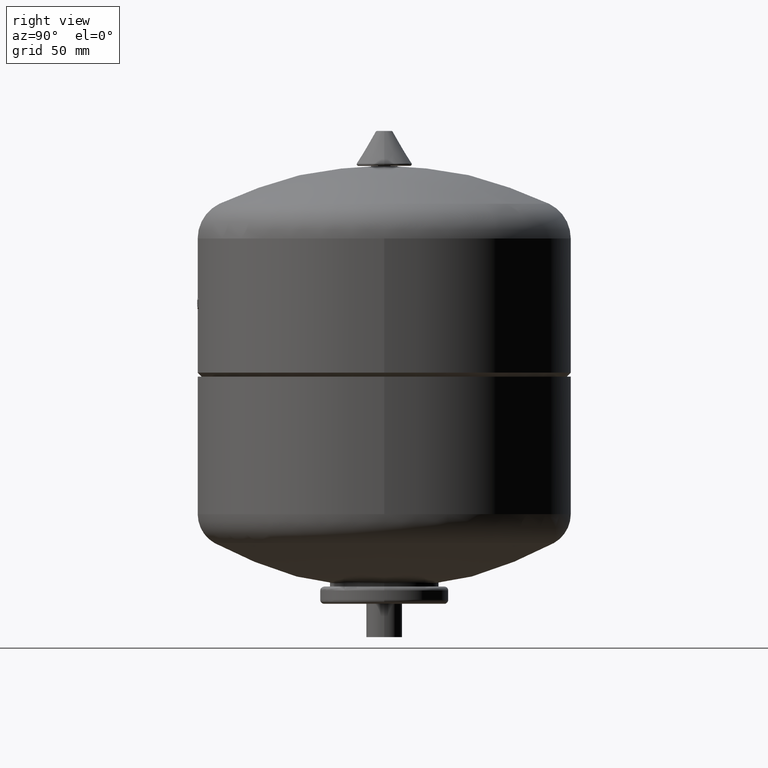
[diagram: clean part render]
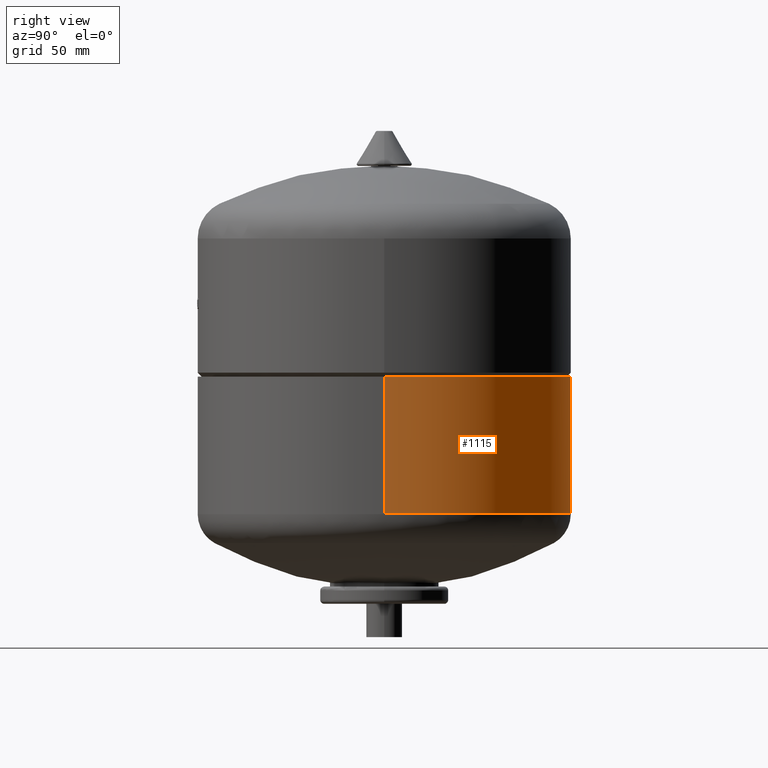
[diagram: same view with one face highlighted and labeled with its STEP entity id]
A machine part, right view. The second image highlights one B-rep face of the part: STEP entity #1115.
In plain terms, the highlighted cylindrical surface (partial cylindrical patch) has radius 140 mm, axis along (0, 0, 1).
Its self-contained STEP definition (entity closure, byte-faithful):
#1025=CARTESIAN_POINT('',(139.999999999999970,0.0,195.499999999999940));
#1026=VERTEX_POINT('',#1025);
#1027=CARTESIAN_POINT('',(139.999999999999940,0.0,92.999999999999915));
#1028=VERTEX_POINT('',#1027);
#1029=CARTESIAN_POINT('',(139.999999999999970,0.0,195.499999999999940));
#1030=DIRECTION('',(0.0,0.0,-1.0));
#1031=VECTOR('',#1030,102.500000000000030);
#1032=LINE('',#1029,#1031);
#1033=EDGE_CURVE('',#1026,#1028,#1032,.T.);
#1035=CARTESIAN_POINT('',(-139.999999999999970,-1.714449E-014,195.499999999999940));
#1036=VERTEX_POINT('',#1035);
#1044=CARTESIAN_POINT('',(-139.999999999999970,-1.714449E-014,92.999999999999915));
#1045=VERTEX_POINT('',#1044);
#1046=CARTESIAN_POINT('',(-139.999999999999970,-1.714449E-014,195.499999999999940));
#1047=DIRECTION('',(0.0,0.0,-1.0));
#1048=VECTOR('',#1047,102.500000000000030);
#1049=LINE('',#1046,#1048);
#1050=EDGE_CURVE('',#1036,#1045,#1049,.T.);
#1067=CARTESIAN_POINT('',(0.0,0.0,195.499999999999940));
#1068=DIRECTION('',(0.0,0.0,1.0));
#1069=DIRECTION('',(1.0,0.0,0.0));
#1070=AXIS2_PLACEMENT_3D('',#1067,#1068,#1069);
#1071=CIRCLE('',#1070,139.999999999999970);
#1072=EDGE_CURVE('',#1026,#1036,#1071,.T.);
#1093=CARTESIAN_POINT('',(0.0,0.0,92.999999999999915));
#1094=DIRECTION('',(0.0,0.0,1.0));
#1095=DIRECTION('',(1.0,0.0,0.0));
#1096=AXIS2_PLACEMENT_3D('',#1093,#1094,#1095);
#1097=CIRCLE('',#1096,139.999999999999940);
#1098=EDGE_CURVE('',#1028,#1045,#1097,.T.);
#1104=CARTESIAN_POINT('',(0.0,0.0,144.249999999999940));
#1105=DIRECTION('',(0.0,0.0,1.0));
#1106=DIRECTION('',(1.0,0.0,0.0));
#1107=AXIS2_PLACEMENT_3D('',#1104,#1105,#1106);
#1108=CYLINDRICAL_SURFACE('',#1107,139.999999999999970);
#1109=ORIENTED_EDGE('',*,*,#1033,.T.);
#1110=ORIENTED_EDGE('',*,*,#1098,.T.);
#1111=ORIENTED_EDGE('',*,*,#1050,.F.);
#1112=ORIENTED_EDGE('',*,*,#1072,.F.);
#1113=EDGE_LOOP('',(#1109,#1110,#1111,#1112));
#1114=FACE_OUTER_BOUND('',#1113,.T.);
#1115=ADVANCED_FACE('',(#1114),#1108,.T.);